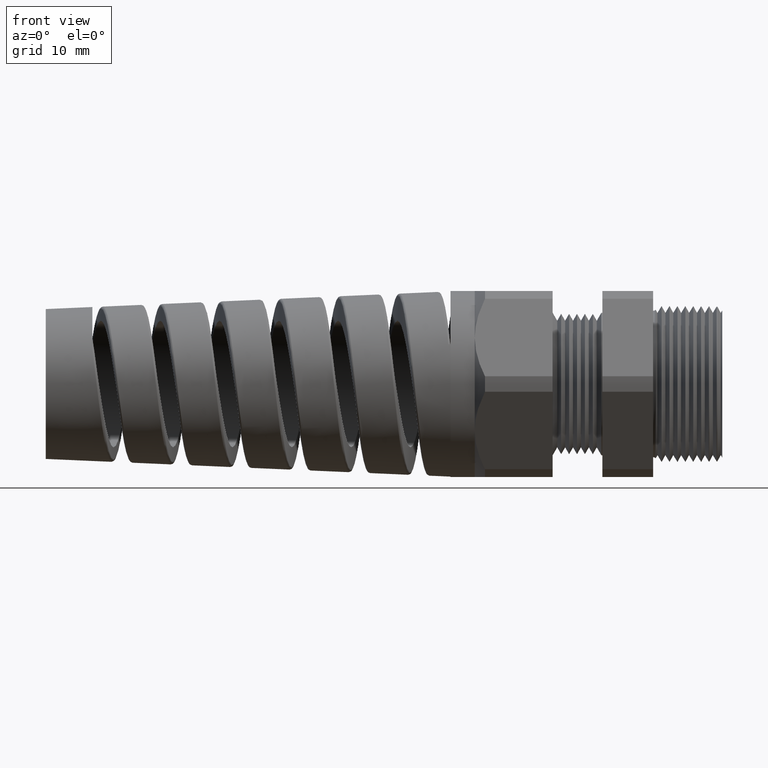
[diagram: clean part render]
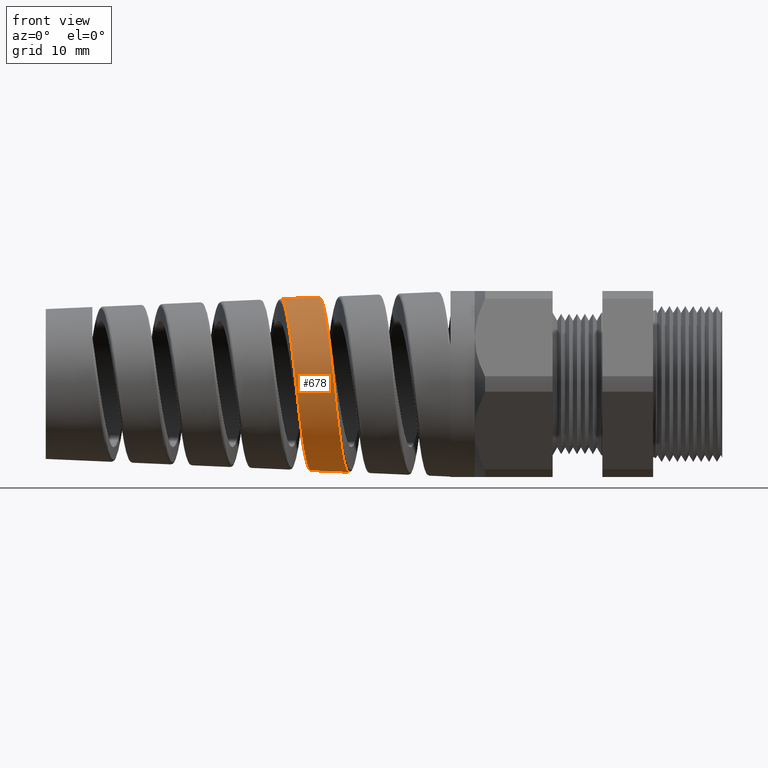
[diagram: same view with one face highlighted and labeled with its STEP entity id]
A machine part, front view. The second image highlights one B-rep face of the part: STEP entity #678.
In plain terms, the highlighted conical surface has half-angle 2.5 deg.
Its self-contained STEP definition (entity closure, byte-faithful):
#523 = VERTEX_POINT ( 'NONE', #3003 ) ;
#525 = EDGE_CURVE ( 'NONE', #599, #523, #3002, .T. ) ;
#583 = EDGE_CURVE ( 'NONE', #639, #584, #3349, .T. ) ;
#584 = VERTEX_POINT ( 'NONE', #3345 ) ;
#599 = VERTEX_POINT ( 'NONE', #3472 ) ;
#639 = VERTEX_POINT ( 'NONE', #3777 ) ;
#657 = EDGE_CURVE ( 'NONE', #639, #599, #3896, .T. ) ;
#658 = ORIENTED_EDGE ( 'NONE', *, *, #525, .T. ) ;
#659 = ORIENTED_EDGE ( 'NONE', *, *, #660, .T. ) ;
#660 = EDGE_CURVE ( 'NONE', #523, #584, #4017, .T. ) ;
#678 = ADVANCED_FACE ( 'NONE', ( #4136 ), #4175, .T. ) ;
#679 = EDGE_LOOP ( 'NONE', ( #680, #681, #658, #659 ) ) ;
#680 = ORIENTED_EDGE ( 'NONE', *, *, #583, .F. ) ;
#681 = ORIENTED_EDGE ( 'NONE', *, *, #657, .T. ) ;
#2999 = DIRECTION ( 'NONE',  ( 0.9990482215818576900, 0.0000000000000000000, -0.04361938736533631900 ) ) ;
#3000 = VECTOR ( 'NONE', #2999, 39.37007874015748100 ) ;
#3001 = CARTESIAN_POINT ( 'NONE',  ( -1.290000000000000300, 0.0000000000000000000, -0.4699999999999998600 ) ) ;
#3002 = LINE ( 'NONE', #3001, #3000 ) ;
#3003 = CARTESIAN_POINT ( 'NONE',  ( -1.848064262452146400, 2.199542617898209600E-014, -0.4456343880977956000 ) ) ;
#3345 = CARTESIAN_POINT ( 'NONE',  ( -1.998019104592909700, -1.402447558707131800E-016, 0.4390872182962327600 ) ) ;
#3346 = DIRECTION ( 'NONE',  ( 0.9990482215818576900, 5.341834311772762600E-018, 0.04361938736533631900 ) ) ;
#3347 = VECTOR ( 'NONE', #3346, 39.37007874015748100 ) ;
#3348 = CARTESIAN_POINT ( 'NONE',  ( -1.290000000000000300, 5.755839955992558400E-017, 0.4699999999999998600 ) ) ;
#3349 = LINE ( 'NONE', #3348, #3347 ) ;
#3472 = CARTESIAN_POINT ( 'NONE',  ( -2.040376159136990400, -4.928673116951565600E-013, -0.4372378693560109400 ) ) ;
#3777 = CARTESIAN_POINT ( 'NONE',  ( -2.190422081872461600, 1.291391739458023200E-016, 0.4306867228898024200 ) ) ;
#3896 = B_SPLINE_CURVE_WITH_KNOTS ( 'NONE', 3,
 ( #3973, #3972, #3971, #3970, #3969, #3968, #3967, #3966, #3965, #3964, #3963, #3962, #3961, #3960, #3959, #3958, #3957, #3956, #3955, #3954, #3953, #3952, #3951, #3950, #3949, #3948, #3947, #3946, #3945, #3944, #3943, #3942, #3941, #3940, #3939, #3938, #3937, #3936, #3935, #3934, #3933, #3932, #3931, #3930, #3929, #3928, #3927 ),
 .UNSPECIFIED., .F., .F.,
 ( 4, 2, 2, 2, 2, 2, 2, 2, 2, 2, 2, 1, 2, 2, 2, 2, 2, 2, 2, 2, 2, 2, 2, 4 ),
 ( 0.2109298441767725200, 0.2120282145463551200, 0.2131265849159377500, 0.2153233256551029800, 0.2164216960246855800, 0.2175200663942682100, 0.2197168071334334400, 0.2208151775030160500, 0.2219135478725986800, 0.2241102886117639100, 0.2252086589813465100, 0.2263070293509291400, 0.2274053997205117700, 0.2285037700900943700, 0.2307005108292596000, 0.2328972515684248300, 0.2350939923075900900, 0.2361923626771727000, 0.2372907330467553300, 0.2394874737859205600, 0.2416842145250857900, 0.2427825848946684200, 0.2438809552642510200, 0.2460776960034162500 ),
 .UNSPECIFIED. ) ;
#3927 = CARTESIAN_POINT ( 'NONE',  ( -2.040376159136990400, -4.928673116951565600E-013, -0.4372378693560109400 ) ) ;
#3928 = CARTESIAN_POINT ( 'NONE',  ( -2.043473526060083100, -0.02834744629023315500, -0.4371026353955831900 ) ) ;
#3929 = CARTESIAN_POINT ( 'NONE',  ( -2.046550857976487500, -0.05648209456167693100, -0.4342371379173405300 ) ) ;
#3930 = CARTESIAN_POINT ( 'NONE',  ( -2.051221057788518800, -0.09835098615755595600, -0.4257850517702839700 ) ) ;
#3931 = CARTESIAN_POINT ( 'NONE',  ( -2.052793825529178700, -0.1123084165898869000, -0.4222472101277435200 ) ) ;
#3932 = CARTESIAN_POINT ( 'NONE',  ( -2.055908398427223700, -0.1395372707298262500, -0.4139039588735221600 ) ) ;
#3933 = CARTESIAN_POINT ( 'NONE',  ( -2.057456675387897800, -0.1528680751963927800, -0.4090924688434552400 ) ) ;
#3934 = CARTESIAN_POINT ( 'NONE',  ( -2.062097206021390200, -0.1920246321290974800, -0.3927782903105303000 ) ) ;
#3935 = CARTESIAN_POINT ( 'NONE',  ( -2.065186144707972900, -0.2170330741961311900, -0.3794069997954737100 ) ) ;
#3936 = CARTESIAN_POINT ( 'NONE',  ( -2.071469056022510200, -0.2646841584728776800, -0.3474997961162136200 ) ) ;
#3937 = CARTESIAN_POINT ( 'NONE',  ( -2.074561976381311900, -0.2865591116136299000, -0.3294808561573681100 ) ) ;
#3938 = CARTESIAN_POINT ( 'NONE',  ( -2.079213254212247000, -0.3165547028918419500, -0.2994830280777305300 ) ) ;
#3939 = CARTESIAN_POINT ( 'NONE',  ( -2.080766037694008000, -0.3260803118794011200, -0.2889852715372469000 ) ) ;
#3940 = CARTESIAN_POINT ( 'NONE',  ( -2.083890658085744800, -0.3441632279469792300, -0.2669714027584868000 ) ) ;
#3941 = CARTESIAN_POINT ( 'NONE',  ( -2.085468074446126700, -0.3527434249497216100, -0.2554091389000571800 ) ) ;
#3942 = CARTESIAN_POINT ( 'NONE',  ( -2.090152155331308500, -0.3764704433747959600, -0.2199122918297450900 ) ) ;
#3943 = CARTESIAN_POINT ( 'NONE',  ( -2.093240754587790200, -0.3898095828643690100, -0.1949780560426703800 ) ) ;
#3944 = CARTESIAN_POINT ( 'NONE',  ( -2.099471096189924300, -0.4115753395879840300, -0.1426083645388856500 ) ) ;
#3945 = CARTESIAN_POINT ( 'NONE',  ( -2.102635861351958500, -0.4199953469103891400, -0.1149511513593060200 ) ) ;
#3946 = CARTESIAN_POINT ( 'NONE',  ( -2.108865754335762500, -0.4310992905353264200, -0.05938815593787661500 ) ) ;
#3947 = CARTESIAN_POINT ( 'NONE',  ( -2.111962484405446500, -0.4339242168521357800, -0.03124277110531130700 ) ) ;
#3948 = CARTESIAN_POINT ( 'NONE',  ( -2.116667477873674000, -0.4339880762209121200, 0.01152242108114517900 ) ) ;
#3949 = CARTESIAN_POINT ( 'NONE',  ( -2.118249286401796500, -0.4332975927486119600, 0.02589861055870576800 ) ) ;
#3950 = CARTESIAN_POINT ( 'NONE',  ( -2.121380137784177700, -0.4305350802282674700, 0.05420791046270161800 ) ) ;
#3951 = CARTESIAN_POINT ( 'NONE',  ( -2.124495181993540700, -0.4263985499385737900, 0.08222876221542919900 ) ) ;
#3952 = CARTESIAN_POINT ( 'NONE',  ( -2.127609292634403500, -0.4195622912235755200, 0.1096794502603257400 ) ) ;
#3953 = CARTESIAN_POINT ( 'NONE',  ( -2.130737394845185300, -0.4113616899772707400, 0.1368403622550557200 ) ) ;
#3954 = CARTESIAN_POINT ( 'NONE',  ( -2.132314271634451000, -0.4065587408215779500, 0.1503247407683155100 ) ) ;
#3955 = CARTESIAN_POINT ( 'NONE',  ( -2.137047800702295500, -0.3901609194360509100, 0.1899923406717671000 ) ) ;
#3956 = CARTESIAN_POINT ( 'NONE',  ( -2.140156315622509600, -0.3768007105333035500, 0.2149604799724027800 ) ) ;
#3957 = CARTESIAN_POINT ( 'NONE',  ( -2.144838974379418100, -0.3532408253519021500, 0.2502605943913296400 ) ) ;
#3958 = CARTESIAN_POINT ( 'NONE',  ( -2.146403045383445300, -0.3447966953466810000, 0.2616660443374256900 ) ) ;
#3959 = CARTESIAN_POINT ( 'NONE',  ( -2.149553490386109500, -0.3266958687762743200, 0.2837334951669846500 ) ) ;
#3960 = CARTESIAN_POINT ( 'NONE',  ( -2.151139048673719000, -0.3170365086425143100, 0.2943825828929008100 ) ) ;
#3961 = CARTESIAN_POINT ( 'NONE',  ( -2.155847862602704000, -0.2868757902276800600, 0.3245049161933941100 ) ) ;
#3962 = CARTESIAN_POINT ( 'NONE',  ( -2.158959333572341600, -0.2650068624553128000, 0.3424234415652227000 ) ) ;
#3963 = CARTESIAN_POINT ( 'NONE',  ( -2.163670311685681900, -0.2295721379596032100, 0.3660556015992725800 ) ) ;
#3964 = CARTESIAN_POINT ( 'NONE',  ( -2.165255746754934900, -0.2172532667753417600, 0.3734218222097883100 ) ) ;
#3965 = CARTESIAN_POINT ( 'NONE',  ( -2.168416906576895900, -0.1920282746732976400, 0.3868446853781976100 ) ) ;
#3966 = CARTESIAN_POINT ( 'NONE',  ( -2.169986297097259900, -0.1791746372514614900, 0.3928830782137036600 ) ) ;
#3967 = CARTESIAN_POINT ( 'NONE',  ( -2.174684075409794000, -0.1399126208832450800, 0.4090341008594480200 ) ) ;
#3968 = CARTESIAN_POINT ( 'NONE',  ( -2.177801617049918400, -0.1128097801967380400, 0.4172013662084837500 ) ) ;
#3969 = CARTESIAN_POINT ( 'NONE',  ( -2.182551269234199100, -0.07073011138817661400, 0.4254276551805639700 ) ) ;
#3970 = CARTESIAN_POINT ( 'NONE',  ( -2.184139056873407800, -0.05653242180805067400, 0.4274727720997127900 ) ) ;
#3971 = CARTESIAN_POINT ( 'NONE',  ( -2.187286576149573700, -0.02826916001122333600, 0.4301294114469355600 ) ) ;
#3972 = CARTESIAN_POINT ( 'NONE',  ( -2.188854006380487300, -0.01413529792870018300, 0.4307551865443337000 ) ) ;
#3973 = CARTESIAN_POINT ( 'NONE',  ( -2.190422081872461600, 1.291391739458023200E-016, 0.4306867228898024200 ) ) ;
#3974 = CARTESIAN_POINT ( 'NONE',  ( -1.972905352216959100, -0.2215561290295696700, 0.3814685794800326500 ) ) ;
#3975 = CARTESIAN_POINT ( 'NONE',  ( -1.968183956321638300, -0.2578247211151326600, 0.3573241621546473500 ) ) ;
#3976 = CARTESIAN_POINT ( 'NONE',  ( -1.966596141589393100, -0.2696205390350702700, 0.3485962018520381600 ) ) ;
#3977 = CARTESIAN_POINT ( 'NONE',  ( -1.963454288810871300, -0.2920517367334063400, 0.3302138549235080200 ) ) ;
#3978 = CARTESIAN_POINT ( 'NONE',  ( -1.960329959786308000, -0.3134526304899113400, 0.3108290289650865200 ) ) ;
#3979 = CARTESIAN_POINT ( 'NONE',  ( -1.957210245288841100, -0.3328300366822760600, 0.2894798823466221400 ) ) ;
#3980 = CARTESIAN_POINT ( 'NONE',  ( -1.954078936789336300, -0.3511851287671262600, 0.2671404260040935500 ) ) ;
#3981 = CARTESIAN_POINT ( 'NONE',  ( -1.952502829305085200, -0.3598775921279538900, 0.2554362088885603900 ) ) ;
#3982 = CARTESIAN_POINT ( 'NONE',  ( -1.947767206724166900, -0.3841880571978367200, 0.2190433250275074000 ) ) ;
#3983 = CARTESIAN_POINT ( 'NONE',  ( -1.944661001460145100, -0.3977597016285890900, 0.1935655111554034100 ) ) ;
#3984 = CARTESIAN_POINT ( 'NONE',  ( -1.939986870618060100, -0.4143000572928927600, 0.1535982283415406900 ) ) ;
#3985 = CARTESIAN_POINT ( 'NONE',  ( -1.938426384734925000, -0.4191727085228925100, 0.1399819181794494700 ) ) ;
#3986 = CARTESIAN_POINT ( 'NONE',  ( -1.935284689509238400, -0.4276033850221621100, 0.1121482650556212800 ) ) ;
#3987 = CARTESIAN_POINT ( 'NONE',  ( -1.933703024479493000, -0.4311520753646453900, 0.09792453811953451300 ) ) ;
#3988 = CARTESIAN_POINT ( 'NONE',  ( -1.929008378036065000, -0.4395850172967312200, 0.05529102728290153500 ) ) ;
#3989 = CARTESIAN_POINT ( 'NONE',  ( -1.925910125059308000, -0.4423815165797150300, 0.02660921111258876500 ) ) ;
#3990 = CARTESIAN_POINT ( 'NONE',  ( -1.921227032899781800, -0.4423578927659601600, -0.01679189106323703700 ) ) ;
#3991 = CARTESIAN_POINT ( 'NONE',  ( -1.919652120562581400, -0.4416344361615390800, -0.03139036692002221400 ) ) ;
#3992 = CARTESIAN_POINT ( 'NONE',  ( -1.916509659844907400, -0.4387493853355355900, -0.06038835087107381800 ) ) ;
#3993 = CARTESIAN_POINT ( 'NONE',  ( -1.914950600494859800, -0.4366032626192338800, -0.07470932806559080200 ) ) ;
#3994 = CARTESIAN_POINT ( 'NONE',  ( -1.910286405070825900, -0.4281170203554068900, -0.1171516263103405700 ) ) ;
#3995 = CARTESIAN_POINT ( 'NONE',  ( -1.907194465937841300, -0.4197481450233408500, -0.1447572119861764700 ) ) ;
#3996 = CARTESIAN_POINT ( 'NONE',  ( -1.902490848872437500, -0.4030252227597675400, -0.1850952503532578800 ) ) ;
#3997 = CARTESIAN_POINT ( 'NONE',  ( -1.900915598586409700, -0.3967555519793745100, -0.1983262376928662800 ) ) ;
#3998 = CARTESIAN_POINT ( 'NONE',  ( -1.897797244332209500, -0.3830914574320710700, -0.2238524883016153600 ) ) ;
#3999 = CARTESIAN_POINT ( 'NONE',  ( -1.896245679013694100, -0.3756682976446122900, -0.2362211568054134500 ) ) ;
#4000 = CARTESIAN_POINT ( 'NONE',  ( -1.893144867146034000, -0.3596576736896835400, -0.2601798899277998900 ) ) ;
#4001 = CARTESIAN_POINT ( 'NONE',  ( -1.891594904533656600, -0.3510702741025738000, -0.2717699045867045200 ) ) ;
#4002 = CARTESIAN_POINT ( 'NONE',  ( -1.888481408340720900, -0.3327163368546214900, -0.2941593391284274600 ) ) ;
#4003 = CARTESIAN_POINT ( 'NONE',  ( -1.886909655005090600, -0.3228939517042440100, -0.3050126219308482200 ) ) ;
#4004 = CARTESIAN_POINT ( 'NONE',  ( -1.882216081190517100, -0.2920232533576179200, -0.3359068590343413700 ) ) ;
#4005 = CARTESIAN_POINT ( 'NONE',  ( -1.879132593738874800, -0.2697243982762039800, -0.3542090789934121400 ) ) ;
#4006 = CARTESIAN_POINT ( 'NONE',  ( -1.874484044041751200, -0.2337777799055846500, -0.3783111318119863900 ) ) ;
#4007 = CARTESIAN_POINT ( 'NONE',  ( -1.872930761560818400, -0.2213762358437742200, -0.3857826746174928300 ) ) ;
#4008 = CARTESIAN_POINT ( 'NONE',  ( -1.869801860592672900, -0.1957115818841655100, -0.3995674730077423100 ) ) ;
#4009 = CARTESIAN_POINT ( 'NONE',  ( -1.868233117675882600, -0.1825017144034981600, -0.4058428936238205900 ) ) ;
#4010 = CARTESIAN_POINT ( 'NONE',  ( -1.863573674052380300, -0.1424290013263442300, -0.4225381395353597900 ) ) ;
#4011 = CARTESIAN_POINT ( 'NONE',  ( -1.860497873781145700, -0.1148769116553641400, -0.4309855771844390300 ) ) ;
#4012 = CARTESIAN_POINT ( 'NONE',  ( -1.855841701001244500, -0.07230080561659348000, -0.4396245785010843800 ) ) ;
#4013 = CARTESIAN_POINT ( 'NONE',  ( -1.854274033054281700, -0.05781901737073456100, -0.4418338066868222100 ) ) ;
#4014 = CARTESIAN_POINT ( 'NONE',  ( -1.851156667676193500, -0.02886951552427147200, -0.4448010289046773800 ) ) ;
#4015 = CARTESIAN_POINT ( 'NONE',  ( -1.849608877248129600, -0.01442139778854288300, -0.4455669487593731900 ) ) ;
#4016 = CARTESIAN_POINT ( 'NONE',  ( -1.848064262452146400, 2.199542617898209600E-014, -0.4456343880977956000 ) ) ;
#4017 = B_SPLINE_CURVE_WITH_KNOTS ( 'NONE', 3,
 ( #4016, #4015, #4014, #4013, #4012, #4011, #4010, #4009, #4008, #4007, #4006, #4005, #4004, #4003, #4002, #4001, #4000, #3999, #3998, #3997, #3996, #3995, #3994, #3993, #3992, #3991, #3990, #3989, #3988, #3987, #3986, #3985, #3984, #3983, #3982, #3981, #3980, #3979, #3978, #3977, #3976, #3975, #3974, #4056, #4055, #4054, #4053, #4052, #4051 ),
 .UNSPECIFIED., .F., .F.,
 ( 4, 2, 2, 2, 2, 2, 2, 2, 2, 2, 2, 2, 2, 2, 2, 2, 2, 2, 2, 1, 2, 2, 2, 2, 4 ),
 ( 0.1238808187226601400, 0.1249976599628682100, 0.1261145012030762700, 0.1283481836834924100, 0.1294650249237004900, 0.1305818661639085400, 0.1328155486443246800, 0.1339323898845327700, 0.1350492311247408200, 0.1361660723649488800, 0.1372829136051569600, 0.1395165960855731000, 0.1406334373257811500, 0.1417502785659892400, 0.1439839610464053700, 0.1451008022866134300, 0.1462176435268214800, 0.1484513260072376500, 0.1495681672474457000, 0.1506850084876537600, 0.1518018497278618400, 0.1529186909680699000, 0.1551523734484860400, 0.1573860559289021700, 0.1596197384093183100 ),
 .UNSPECIFIED. ) ;
#4051 = CARTESIAN_POINT ( 'NONE',  ( -1.998019104592909700, -1.402447558707131800E-016, 0.4390872182962327600 ) ) ;
#4052 = CARTESIAN_POINT ( 'NONE',  ( -1.994863412549371400, -0.02903934621929063500, 0.4392249987863827100 ) ) ;
#4053 = CARTESIAN_POINT ( 'NONE',  ( -1.991747098194856800, -0.05773769788982245600, 0.4365078272464442700 ) ) ;
#4054 = CARTESIAN_POINT ( 'NONE',  ( -1.985469803185997600, -0.1144502964146839600, 0.4254582981259478200 ) ) ;
#4055 = CARTESIAN_POINT ( 'NONE',  ( -1.982284221120867600, -0.1426780747608509000, 0.4169875963303499900 ) ) ;
#4056 = CARTESIAN_POINT ( 'NONE',  ( -1.976015831075535400, -0.1960985476370731300, 0.3949960015039625800 ) ) ;
#4136 = FACE_OUTER_BOUND ( 'NONE', #679, .T. ) ;
#4172 = DIRECTION ( 'NONE',  ( 1.000000000000000000, 0.0000000000000000000, 0.0000000000000000000 ) ) ;
#4173 = CARTESIAN_POINT ( 'NONE',  ( -1.290000000000000300, 0.0000000000000000000, 0.0000000000000000000 ) ) ;
#4174 = AXIS2_PLACEMENT_3D ( 'NONE', #4173, #4172, #4258 ) ;
#4175 = CONICAL_SURFACE ( 'NONE', #4174, 0.4699999999999998600, 0.04363323129985855600 ) ;
#4258 = DIRECTION ( 'NONE',  ( 0.0000000000000000000, 0.0000000000000000000, -1.000000000000000000 ) ) ;